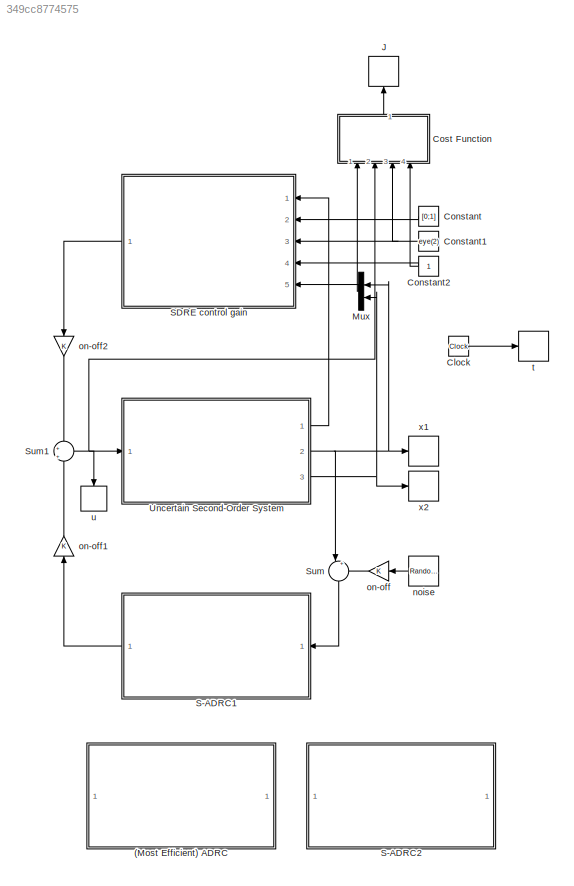
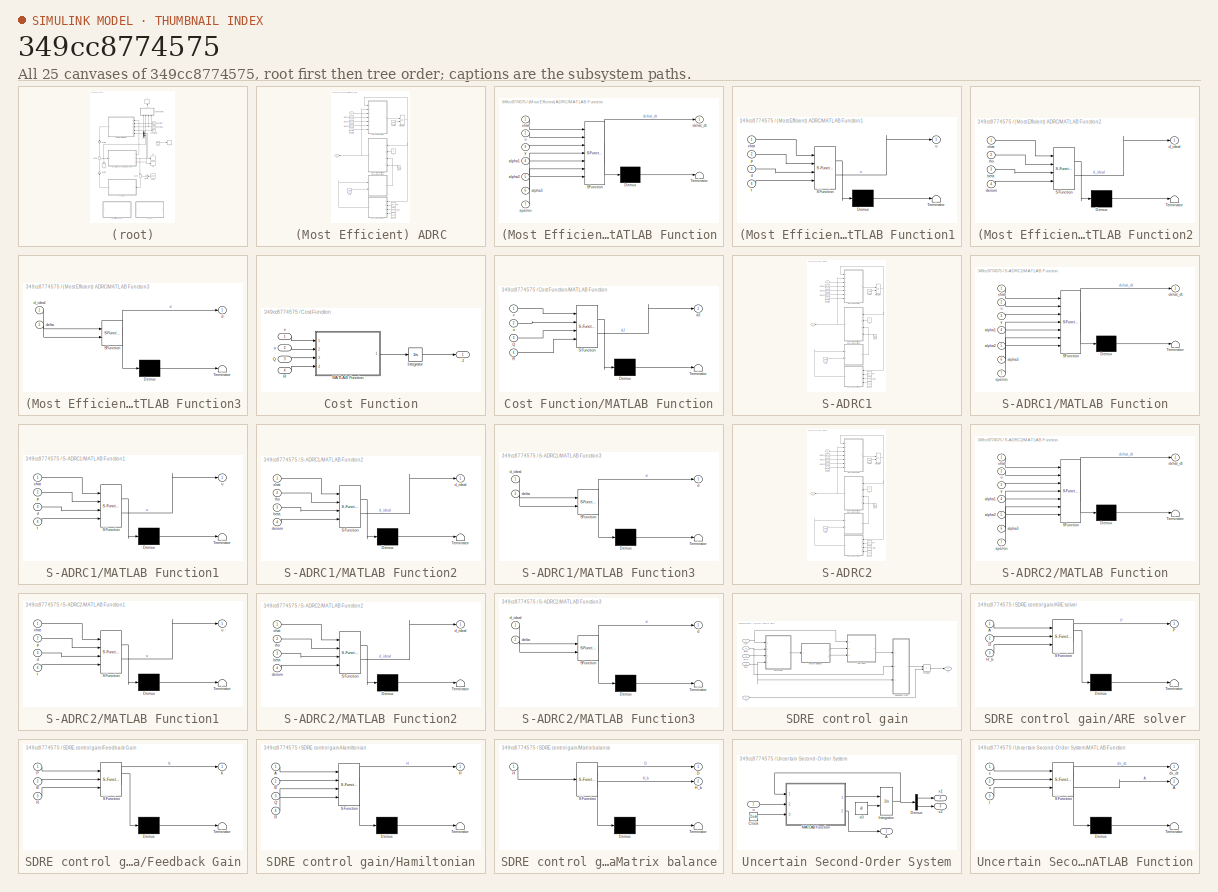
[diagram: thumbnail index - all 25 canvases of the model, root first then tree order]
MODEL slx_349cc8774575
KIND model
CONFIG AbsTol = auto
CONFIG EnableMultiTasking = off
CONFIG FixedStep = auto
CONFIG MaxStep = auto
CONFIG MinStep = auto
CONFIG RelTol = auto
CONFIG SampleTimeConstraint = Unconstrained
CONFIG SolverName = VariableStepAuto
CONFIG StartTime = 0.0
CONFIG StopTime = 10
BLOCK [SubSystem] (Most Efficient) ADRC
  Commented = on
  Ports = [1, 1]
  RequestExecContextInheritance = off
BLOCK [Clock] (Most Efficient) ADRC/Clock
BLOCK [Integrator] (Most Efficient) ADRC/Integrator
  InitialConditionSource = external
  Ports = [2, 1]
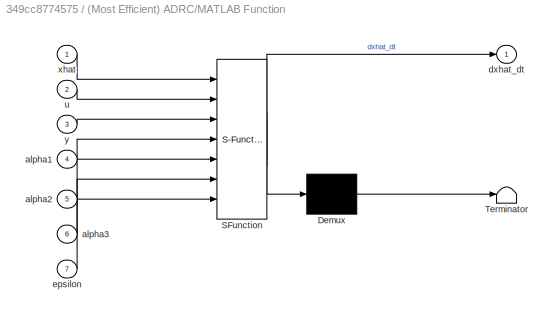
BLOCK [SubSystem] (Most Efficient) ADRC/MATLAB Function
  ErrorFcn = Stateflow.Translate.translate
  PermitHierarchicalResolution = ExplicitOnly
  Ports = [7, 1]
  RequestExecContextInheritance = off
  SFBlockType = MATLAB Function
  TreatAsAtomicUnit = on
BLOCK [Demux] (Most Efficient) ADRC/MATLAB Function/ Demux 
  Outputs = 1
  Ports = [1, 1]
BLOCK [S-Function] (Most Efficient) ADRC/MATLAB Function/ SFunction 
  EnableBusSupport = on
  FunctionName = sf_sfun
  PortCounts = [7 2]
  Ports = [7, 2]
  SFcnIsStateOwnerBlock = off
  SFunctionDeploymentMode = off
  Tag = Stateflow S-Function 1
BLOCK [Terminator] (Most Efficient) ADRC/MATLAB Function/ Terminator 
BLOCK [Inport] (Most Efficient) ADRC/MATLAB Function/alpha1
  Port = 4
BLOCK [Inport] (Most Efficient) ADRC/MATLAB Function/alpha2
  Port = 5
BLOCK [Inport] (Most Efficient) ADRC/MATLAB Function/alpha3
  Port = 6
BLOCK [Outport] (Most Efficient) ADRC/MATLAB Function/dxhat_dt
BLOCK [Inport] (Most Efficient) ADRC/MATLAB Function/epsilon
  Port = 7
BLOCK [Inport] (Most Efficient) ADRC/MATLAB Function/u
  Port = 2
BLOCK [Inport] (Most Efficient) ADRC/MATLAB Function/xhat
BLOCK [Inport] (Most Efficient) ADRC/MATLAB Function/y
  Port = 3
BLOCK [SubSystem] (Most Efficient) ADRC/MATLAB Function1
  ErrorFcn = Stateflow.Translate.translate
  PermitHierarchicalResolution = ExplicitOnly
  Ports = [4, 1]
  RequestExecContextInheritance = off
  SFBlockType = MATLAB Function
  TreatAsAtomicUnit = on
BLOCK [Demux] (Most Efficient) ADRC/MATLAB Function1/ Demux 
  Outputs = 1
  Ports = [1, 1]
BLOCK [S-Function] (Most Efficient) ADRC/MATLAB Function1/ SFunction 
  EnableBusSupport = on
  FunctionName = sf_sfun
  PortCounts = [4 2]
  Ports = [4, 2]
  SFcnIsStateOwnerBlock = off
  SFunctionDeploymentMode = off
  Tag = Stateflow S-Function 3
BLOCK [Terminator] (Most Efficient) ADRC/MATLAB Function1/ Terminator 
BLOCK [Inport] (Most Efficient) ADRC/MATLAB Function1/d
  Port = 3
BLOCK [Inport] (Most Efficient) ADRC/MATLAB Function1/p
  Port = 2
BLOCK [Inport] (Most Efficient) ADRC/MATLAB Function1/t
  Port = 4
BLOCK [Outport] (Most Efficient) ADRC/MATLAB Function1/u
BLOCK [Inport] (Most Efficient) ADRC/MATLAB Function1/xhat
BLOCK [SubSystem] (Most Efficient) ADRC/MATLAB Function2
  ErrorFcn = Stateflow.Translate.translate
  PermitHierarchicalResolution = ExplicitOnly
  Ports = [4, 1]
  RequestExecContextInheritance = off
  SFBlockType = MATLAB Function
  TreatAsAtomicUnit = on
BLOCK [Demux] (Most Efficient) ADRC/MATLAB Function2/ Demux 
  Outputs = 1
  Ports = [1, 1]
BLOCK [S-Function] (Most Efficient) ADRC/MATLAB Function2/ SFunction 
  EnableBusSupport = on
  FunctionName = sf_sfun
  PortCounts = [4 2]
  Ports = [4, 2]
  SFcnIsStateOwnerBlock = off
  SFunctionDeploymentMode = off
  Tag = Stateflow S-Function 4
BLOCK [Terminator] (Most Efficient) ADRC/MATLAB Function2/ Terminator 
BLOCK [Inport] (Most Efficient) ADRC/MATLAB Function2/beta
  Port = 3
BLOCK [Outport] (Most Efficient) ADRC/MATLAB Function2/d_ideal
BLOCK [Inport] (Most Efficient) ADRC/MATLAB Function2/denom
  Port = 4
BLOCK [Inport] (Most Efficient) ADRC/MATLAB Function2/rho
  Port = 2
BLOCK [Inport] (Most Efficient) ADRC/MATLAB Function2/xhat
BLOCK [SubSystem] (Most Efficient) ADRC/MATLAB Function3
  ErrorFcn = Stateflow.Translate.translate
  PermitHierarchicalResolution = ExplicitOnly
  Ports = [2, 1]
  RequestExecContextInheritance = off
  SFBlockType = MATLAB Function
  TreatAsAtomicUnit = on
BLOCK [Demux] (Most Efficient) ADRC/MATLAB Function3/ Demux 
  Outputs = 1
  Ports = [1, 1]
BLOCK [S-Function] (Most Efficient) ADRC/MATLAB Function3/ SFunction 
  EnableBusSupport = on
  FunctionName = sf_sfun
  PortCounts = [2 2]
  Ports = [2, 2]
  SFcnIsStateOwnerBlock = off
  SFunctionDeploymentMode = off
  Tag = Stateflow S-Function 5
BLOCK [Terminator] (Most Efficient) ADRC/MATLAB Function3/ Terminator 
BLOCK [Outport] (Most Efficient) ADRC/MATLAB Function3/d
BLOCK [Inport] (Most Efficient) ADRC/MATLAB Function3/d_ideal
BLOCK [Inport] (Most Efficient) ADRC/MATLAB Function3/delta
  Port = 2
BLOCK [Constant] (Most Efficient) ADRC/alpha1
  Value = alpha1
BLOCK [Constant] (Most Efficient) ADRC/alpha2
  Value = alpha2
BLOCK [Constant] (Most Efficient) ADRC/alpha3
  Value = alpha3
BLOCK [Constant] (Most Efficient) ADRC/beta
  Value = beta
BLOCK [Constant] (Most Efficient) ADRC/delta
  Value = delta
BLOCK [Constant] (Most Efficient) ADRC/denom
  Value = 1e-6
BLOCK [Constant] (Most Efficient) ADRC/epsilon
  Value = epsilon
BLOCK [Constant] (Most Efficient) ADRC/p
  Value = p
BLOCK [Constant] (Most Efficient) ADRC/rho
  Value = rho
BLOCK [Outport] (Most Efficient) ADRC/u
BLOCK [Constant] (Most Efficient) ADRC/xhat0
  Value = xhat0
BLOCK [Inport] (Most Efficient) ADRC/y
BLOCK [Clock] Clock
BLOCK [Constant] Constant
  Value = [0;1]
BLOCK [Constant] Constant1
  Value = eye(2)
BLOCK [Constant] Constant2
BLOCK [SubSystem] Cost Function
  NameLocation = right
  Ports = [4, 1]
  RequestExecContextInheritance = off
BLOCK [Integrator] Cost Function/Integrator
  Ports = [1, 1]
BLOCK [Outport] Cost Function/J
BLOCK [SubSystem] Cost Function/MATLAB Function
  ErrorFcn = Stateflow.Translate.translate
  PermitHierarchicalResolution = ExplicitOnly
  Ports = [4, 1]
  RequestExecContextInheritance = off
  SFBlockType = MATLAB Function
  TreatAsAtomicUnit = on
BLOCK [Demux] Cost Function/MATLAB Function/ Demux 
  Outputs = 1
  Ports = [1, 1]
BLOCK [S-Function] Cost Function/MATLAB Function/ SFunction 
  EnableBusSupport = on
  FunctionName = sf_sfun
  PortCounts = [4 2]
  Ports = [4, 2]
  SFcnIsStateOwnerBlock = off
  SFunctionDeploymentMode = off
  Tag = Stateflow S-Function 10
BLOCK [Terminator] Cost Function/MATLAB Function/ Terminator 
BLOCK [Inport] Cost Function/MATLAB Function/Q
  Port = 3
BLOCK [Inport] Cost Function/MATLAB Function/R
  Port = 4
BLOCK [Outport] Cost Function/MATLAB Function/dJ
BLOCK [Inport] Cost Function/MATLAB Function/u
  Port = 2
BLOCK [Inport] Cost Function/MATLAB Function/x
BLOCK [Inport] Cost Function/Q
  Port = 3
BLOCK [Inport] Cost Function/R
  Port = 4
BLOCK [Inport] Cost Function/u
  Port = 2
BLOCK [Inport] Cost Function/x
BLOCK [ToWorkspace] J
  FixptAsFi = on
  MaxDataPoints = inf
  NameLocation = right
  Ports = [1]
  SampleTime = -1
  Save2DSignal = 2-D array (concatenate along first dimension)
  VariableName = J
BLOCK [Mux] Mux
  DisplayOption = bar
  Inputs = 2
  Ports = [2, 1]
BLOCK [SubSystem] S-ADRC1
  Commented = on
  Ports = [1, 1]
  RequestExecContextInheritance = off
BLOCK [Clock] S-ADRC1/Clock
BLOCK [Integrator] S-ADRC1/Integrator
  InitialConditionSource = external
  Ports = [2, 1]
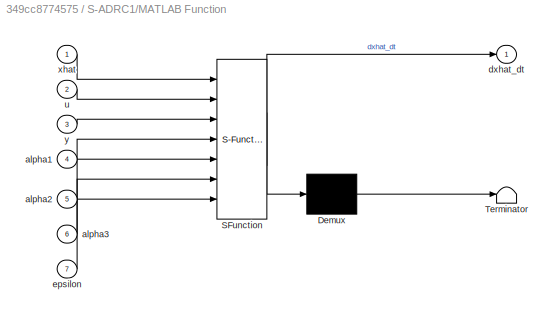
BLOCK [SubSystem] S-ADRC1/MATLAB Function
  ErrorFcn = Stateflow.Translate.translate
  PermitHierarchicalResolution = ExplicitOnly
  Ports = [7, 1]
  RequestExecContextInheritance = off
  SFBlockType = MATLAB Function
  TreatAsAtomicUnit = on
BLOCK [Demux] S-ADRC1/MATLAB Function/ Demux 
  Outputs = 1
  Ports = [1, 1]
BLOCK [S-Function] S-ADRC1/MATLAB Function/ SFunction 
  EnableBusSupport = on
  FunctionName = sf_sfun
  PortCounts = [7 2]
  Ports = [7, 2]
  SFcnIsStateOwnerBlock = off
  SFunctionDeploymentMode = off
  Tag = Stateflow S-Function 11
BLOCK [Terminator] S-ADRC1/MATLAB Function/ Terminator 
BLOCK [Inport] S-ADRC1/MATLAB Function/alpha1
  Port = 4
BLOCK [Inport] S-ADRC1/MATLAB Function/alpha2
  Port = 5
BLOCK [Inport] S-ADRC1/MATLAB Function/alpha3
  Port = 6
BLOCK [Outport] S-ADRC1/MATLAB Function/dxhat_dt
BLOCK [Inport] S-ADRC1/MATLAB Function/epsilon
  Port = 7
BLOCK [Inport] S-ADRC1/MATLAB Function/u
  Port = 2
BLOCK [Inport] S-ADRC1/MATLAB Function/xhat
BLOCK [Inport] S-ADRC1/MATLAB Function/y
  Port = 3
BLOCK [SubSystem] S-ADRC1/MATLAB Function1
  ErrorFcn = Stateflow.Translate.translate
  PermitHierarchicalResolution = ExplicitOnly
  Ports = [4, 1]
  RequestExecContextInheritance = off
  SFBlockType = MATLAB Function
  TreatAsAtomicUnit = on
BLOCK [Demux] S-ADRC1/MATLAB Function1/ Demux 
  Outputs = 1
  Ports = [1, 1]
BLOCK [S-Function] S-ADRC1/MATLAB Function1/ SFunction 
  EnableBusSupport = on
  FunctionName = sf_sfun
  PortCounts = [4 2]
  Ports = [4, 2]
  SFcnIsStateOwnerBlock = off
  SFunctionDeploymentMode = off
  Tag = Stateflow S-Function 12
BLOCK [Terminator] S-ADRC1/MATLAB Function1/ Terminator 
BLOCK [Inport] S-ADRC1/MATLAB Function1/d
  Port = 3
BLOCK [Inport] S-ADRC1/MATLAB Function1/p
  Port = 2
BLOCK [Inport] S-ADRC1/MATLAB Function1/t
  Port = 4
BLOCK [Outport] S-ADRC1/MATLAB Function1/u
BLOCK [Inport] S-ADRC1/MATLAB Function1/xhat
BLOCK [SubSystem] S-ADRC1/MATLAB Function2
  ErrorFcn = Stateflow.Translate.translate
  PermitHierarchicalResolution = ExplicitOnly
  Ports = [4, 1]
  RequestExecContextInheritance = off
  SFBlockType = MATLAB Function
  TreatAsAtomicUnit = on
BLOCK [Demux] S-ADRC1/MATLAB Function2/ Demux 
  Outputs = 1
  Ports = [1, 1]
BLOCK [S-Function] S-ADRC1/MATLAB Function2/ SFunction 
  EnableBusSupport = on
  FunctionName = sf_sfun
  PortCounts = [4 2]
  Ports = [4, 2]
  SFcnIsStateOwnerBlock = off
  SFunctionDeploymentMode = off
  Tag = Stateflow S-Function 13
BLOCK [Terminator] S-ADRC1/MATLAB Function2/ Terminator 
BLOCK [Inport] S-ADRC1/MATLAB Function2/beta
  Port = 3
BLOCK [Outport] S-ADRC1/MATLAB Function2/d_ideal
BLOCK [Inport] S-ADRC1/MATLAB Function2/denom
  Port = 4
BLOCK [Inport] S-ADRC1/MATLAB Function2/rho
  Port = 2
BLOCK [Inport] S-ADRC1/MATLAB Function2/xhat
BLOCK [SubSystem] S-ADRC1/MATLAB Function3
  ErrorFcn = Stateflow.Translate.translate
  PermitHierarchicalResolution = ExplicitOnly
  Ports = [2, 1]
  RequestExecContextInheritance = off
  SFBlockType = MATLAB Function
  TreatAsAtomicUnit = on
BLOCK [Demux] S-ADRC1/MATLAB Function3/ Demux 
  Outputs = 1
  Ports = [1, 1]
BLOCK [S-Function] S-ADRC1/MATLAB Function3/ SFunction 
  EnableBusSupport = on
  FunctionName = sf_sfun
  PortCounts = [2 2]
  Ports = [2, 2]
  SFcnIsStateOwnerBlock = off
  SFunctionDeploymentMode = off
  Tag = Stateflow S-Function 14
BLOCK [Terminator] S-ADRC1/MATLAB Function3/ Terminator 
BLOCK [Outport] S-ADRC1/MATLAB Function3/d
BLOCK [Inport] S-ADRC1/MATLAB Function3/d_ideal
BLOCK [Inport] S-ADRC1/MATLAB Function3/delta
  Port = 2
BLOCK [Constant] S-ADRC1/alpha1
  Value = alpha1
BLOCK [Constant] S-ADRC1/alpha2
  Value = alpha2
BLOCK [Constant] S-ADRC1/alpha3
  Value = alpha3
BLOCK [Constant] S-ADRC1/beta
  Value = beta
BLOCK [Constant] S-ADRC1/delta
  Value = delta
BLOCK [Constant] S-ADRC1/denom
  Value = 1e-6
BLOCK [Constant] S-ADRC1/epsilon
  Value = epsilon
BLOCK [Constant] S-ADRC1/p
  Value = p
BLOCK [Constant] S-ADRC1/rho
  Value = rho
BLOCK [Outport] S-ADRC1/u
BLOCK [Constant] S-ADRC1/xhat0
  Value = xhat0
BLOCK [Inport] S-ADRC1/y
BLOCK [SubSystem] S-ADRC2
  Commented = on
  Ports = [1, 1]
  RequestExecContextInheritance = off
BLOCK [Clock] S-ADRC2/Clock
BLOCK [Integrator] S-ADRC2/Integrator
  InitialConditionSource = external
  Ports = [2, 1]
BLOCK [SubSystem] S-ADRC2/MATLAB Function
  ErrorFcn = Stateflow.Translate.translate
  PermitHierarchicalResolution = ExplicitOnly
  Ports = [7, 1]
  RequestExecContextInheritance = off
  SFBlockType = MATLAB Function
  TreatAsAtomicUnit = on
BLOCK [Demux] S-ADRC2/MATLAB Function/ Demux 
  Outputs = 1
  Ports = [1, 1]
BLOCK [S-Function] S-ADRC2/MATLAB Function/ SFunction 
  EnableBusSupport = on
  FunctionName = sf_sfun
  PortCounts = [7 2]
  Ports = [7, 2]
  SFcnIsStateOwnerBlock = off
  SFunctionDeploymentMode = off
  Tag = Stateflow S-Function 15
BLOCK [Terminator] S-ADRC2/MATLAB Function/ Terminator 
BLOCK [Inport] S-ADRC2/MATLAB Function/alpha1
  Port = 4
BLOCK [Inport] S-ADRC2/MATLAB Function/alpha2
  Port = 5
BLOCK [Inport] S-ADRC2/MATLAB Function/alpha3
  Port = 6
BLOCK [Outport] S-ADRC2/MATLAB Function/dxhat_dt
BLOCK [Inport] S-ADRC2/MATLAB Function/epsilon
  Port = 7
BLOCK [Inport] S-ADRC2/MATLAB Function/u
  Port = 2
BLOCK [Inport] S-ADRC2/MATLAB Function/xhat
BLOCK [Inport] S-ADRC2/MATLAB Function/y
  Port = 3
BLOCK [SubSystem] S-ADRC2/MATLAB Function1
  ErrorFcn = Stateflow.Translate.translate
  PermitHierarchicalResolution = ExplicitOnly
  Ports = [4, 1]
  RequestExecContextInheritance = off
  SFBlockType = MATLAB Function
  TreatAsAtomicUnit = on
BLOCK [Demux] S-ADRC2/MATLAB Function1/ Demux 
  Outputs = 1
  Ports = [1, 1]
BLOCK [S-Function] S-ADRC2/MATLAB Function1/ SFunction 
  EnableBusSupport = on
  FunctionName = sf_sfun
  PortCounts = [4 2]
  Ports = [4, 2]
  SFcnIsStateOwnerBlock = off
  SFunctionDeploymentMode = off
  Tag = Stateflow S-Function 16
BLOCK [Terminator] S-ADRC2/MATLAB Function1/ Terminator 
BLOCK [Inport] S-ADRC2/MATLAB Function1/d
  Port = 3
BLOCK [Inport] S-ADRC2/MATLAB Function1/p
  Port = 2
BLOCK [Inport] S-ADRC2/MATLAB Function1/t
  Port = 4
BLOCK [Outport] S-ADRC2/MATLAB Function1/u
BLOCK [Inport] S-ADRC2/MATLAB Function1/xhat
BLOCK [SubSystem] S-ADRC2/MATLAB Function2
  ErrorFcn = Stateflow.Translate.translate
  PermitHierarchicalResolution = ExplicitOnly
  Ports = [4, 1]
  RequestExecContextInheritance = off
  SFBlockType = MATLAB Function
  TreatAsAtomicUnit = on
BLOCK [Demux] S-ADRC2/MATLAB Function2/ Demux 
  Outputs = 1
  Ports = [1, 1]
BLOCK [S-Function] S-ADRC2/MATLAB Function2/ SFunction 
  EnableBusSupport = on
  FunctionName = sf_sfun
  PortCounts = [4 2]
  Ports = [4, 2]
  SFcnIsStateOwnerBlock = off
  SFunctionDeploymentMode = off
  Tag = Stateflow S-Function 17
BLOCK [Terminator] S-ADRC2/MATLAB Function2/ Terminator 
BLOCK [Inport] S-ADRC2/MATLAB Function2/beta
  Port = 3
BLOCK [Outport] S-ADRC2/MATLAB Function2/d_ideal
BLOCK [Inport] S-ADRC2/MATLAB Function2/denom
  Port = 4
BLOCK [Inport] S-ADRC2/MATLAB Function2/rho
  Port = 2
BLOCK [Inport] S-ADRC2/MATLAB Function2/xhat
BLOCK [SubSystem] S-ADRC2/MATLAB Function3
  ErrorFcn = Stateflow.Translate.translate
  PermitHierarchicalResolution = ExplicitOnly
  Ports = [2, 1]
  RequestExecContextInheritance = off
  SFBlockType = MATLAB Function
  TreatAsAtomicUnit = on
BLOCK [Demux] S-ADRC2/MATLAB Function3/ Demux 
  Outputs = 1
  Ports = [1, 1]
BLOCK [S-Function] S-ADRC2/MATLAB Function3/ SFunction 
  EnableBusSupport = on
  FunctionName = sf_sfun
  PortCounts = [2 2]
  Ports = [2, 2]
  SFcnIsStateOwnerBlock = off
  SFunctionDeploymentMode = off
  Tag = Stateflow S-Function 18
BLOCK [Terminator] S-ADRC2/MATLAB Function3/ Terminator 
BLOCK [Outport] S-ADRC2/MATLAB Function3/d
BLOCK [Inport] S-ADRC2/MATLAB Function3/d_ideal
BLOCK [Inport] S-ADRC2/MATLAB Function3/delta
  Port = 2
BLOCK [Constant] S-ADRC2/alpha1
  Value = alpha1
BLOCK [Constant] S-ADRC2/alpha2
  Value = alpha2
BLOCK [Constant] S-ADRC2/alpha3
  Value = alpha3
BLOCK [Constant] S-ADRC2/beta
  Value = beta
BLOCK [Constant] S-ADRC2/delta
  Value = delta
BLOCK [Constant] S-ADRC2/denom
  Value = 1e-6
BLOCK [Constant] S-ADRC2/epsilon
  Value = epsilon
BLOCK [Constant] S-ADRC2/p
  Value = p
BLOCK [Constant] S-ADRC2/rho
  Value = rho
BLOCK [Outport] S-ADRC2/u
BLOCK [Constant] S-ADRC2/xhat0
  Value = xhat0
BLOCK [Inport] S-ADRC2/y
BLOCK [SubSystem] SDRE control gain
  Ports = [5, 1]
  RequestExecContextInheritance = off
BLOCK [Inport] SDRE control gain/A(x)
BLOCK [SubSystem] SDRE control gain/ARE solver
  ErrorFcn = Stateflow.Translate.translate
  PermitHierarchicalResolution = ExplicitOnly
  Ports = [3, 1]
  RequestExecContextInheritance = off
  SFBlockType = MATLAB Function
  TreatAsAtomicUnit = on
BLOCK [Demux] SDRE control gain/ARE solver/ Demux 
  Outputs = 1
  Ports = [1, 1]
BLOCK [S-Function] SDRE control gain/ARE solver/ SFunction 
  EnableBusSupport = on
  FunctionName = sf_sfun
  PortCounts = [3 2]
  Ports = [3, 2]
  SFcnIsStateOwnerBlock = off
  SFunctionDeploymentMode = off
  Tag = Stateflow S-Function 6
BLOCK [Terminator] SDRE control gain/ARE solver/ Terminator 
BLOCK [Inport] SDRE control gain/ARE solver/A
BLOCK [Inport] SDRE control gain/ARE solver/D
  Port = 2
BLOCK [Inport] SDRE control gain/ARE solver/H_b
  Port = 3
BLOCK [Outport] SDRE control gain/ARE solver/P
BLOCK [Inport] SDRE control gain/B(x)
  Port = 2
BLOCK [SubSystem] SDRE control gain/Feedback Gain
  ErrorFcn = Stateflow.Translate.translate
  PermitHierarchicalResolution = ExplicitOnly
  Ports = [3, 1]
  RequestExecContextInheritance = off
  SFBlockType = MATLAB Function
  TreatAsAtomicUnit = on
BLOCK [Demux] SDRE control gain/Feedback Gain/ Demux 
  Outputs = 1
  Ports = [1, 1]
BLOCK [S-Function] SDRE control gain/Feedback Gain/ SFunction 
  EnableBusSupport = on
  FunctionName = sf_sfun
  PortCounts = [3 2]
  Ports = [3, 2]
  SFcnIsStateOwnerBlock = off
  SFunctionDeploymentMode = off
  Tag = Stateflow S-Function 7
BLOCK [Terminator] SDRE control gain/Feedback Gain/ Terminator 
BLOCK [Inport] SDRE control gain/Feedback Gain/B
  Port = 2
BLOCK [Outport] SDRE control gain/Feedback Gain/K
BLOCK [Inport] SDRE control gain/Feedback Gain/P
BLOCK [Inport] SDRE control gain/Feedback Gain/R
  Port = 3
BLOCK [SubSystem] SDRE control gain/Hamiltonian
  ErrorFcn = Stateflow.Translate.translate
  PermitHierarchicalResolution = ExplicitOnly
  Ports = [4, 1]
  RequestExecContextInheritance = off
  SFBlockType = MATLAB Function
  TreatAsAtomicUnit = on
BLOCK [Demux] SDRE control gain/Hamiltonian/ Demux 
  Outputs = 1
  Ports = [1, 1]
BLOCK [S-Function] SDRE control gain/Hamiltonian/ SFunction 
  EnableBusSupport = on
  FunctionName = sf_sfun
  PortCounts = [4 2]
  Ports = [4, 2]
  SFcnIsStateOwnerBlock = off
  SFunctionDeploymentMode = off
  Tag = Stateflow S-Function 8
BLOCK [Terminator] SDRE control gain/Hamiltonian/ Terminator 
BLOCK [Inport] SDRE control gain/Hamiltonian/A
BLOCK [Inport] SDRE control gain/Hamiltonian/B
  Port = 2
BLOCK [Outport] SDRE control gain/Hamiltonian/H
BLOCK [Inport] SDRE control gain/Hamiltonian/Q
  Port = 3
BLOCK [Inport] SDRE control gain/Hamiltonian/R
  Port = 4
BLOCK [SubSystem] SDRE control gain/Matrix balance
  ErrorFcn = Stateflow.Translate.translate
  PermitHierarchicalResolution = ExplicitOnly
  Ports = [1, 2]
  RequestExecContextInheritance = off
  SFBlockType = MATLAB Function
  TreatAsAtomicUnit = on
BLOCK [Demux] SDRE control gain/Matrix balance/ Demux 
  Outputs = 1
  Ports = [1, 1]
BLOCK [S-Function] SDRE control gain/Matrix balance/ SFunction 
  EnableBusSupport = on
  FunctionName = sf_sfun
  PortCounts = [1 3]
  Ports = [1, 3]
  SFcnIsStateOwnerBlock = off
  SFunctionDeploymentMode = off
  Tag = Stateflow S-Function 9
BLOCK [Terminator] SDRE control gain/Matrix balance/ Terminator 
BLOCK [Outport] SDRE control gain/Matrix balance/D
BLOCK [Inport] SDRE control gain/Matrix balance/H
BLOCK [Outport] SDRE control gain/Matrix balance/H_b
  Port = 2
BLOCK [Product] SDRE control gain/Product
  Multiplication = Matrix(*)
  Ports = [2, 1]
BLOCK [Inport] SDRE control gain/Q(x)
  Port = 3
BLOCK [Inport] SDRE control gain/R(x)
  Port = 4
BLOCK [Outport] SDRE control gain/u
BLOCK [Inport] SDRE control gain/x
  Port = 5
BLOCK [Sum] Sum
  Commented = on
  Inputs = |++
  NameLocation = right
  Ports = [2, 1]
BLOCK [Sum] Sum1
  Inputs = +|+
  NameLocation = top
  Ports = [2, 1]
BLOCK [SubSystem] Uncertain Second-Order System
  Ports = [1, 3]
  RequestExecContextInheritance = off
BLOCK [Outport] Uncertain Second-Order System/A
BLOCK [Clock] Uncertain Second-Order System/Clock
BLOCK [Demux] Uncertain Second-Order System/Demux
  Outputs = 2
  Ports = [1, 2]
BLOCK [Integrator] Uncertain Second-Order System/Integrator
  InitialConditionSource = external
  Ports = [2, 1]
BLOCK [SubSystem] Uncertain Second-Order System/MATLAB Function
  ErrorFcn = Stateflow.Translate.translate
  PermitHierarchicalResolution = ExplicitOnly
  Ports = [3, 2]
  RequestExecContextInheritance = off
  SFBlockType = MATLAB Function
  TreatAsAtomicUnit = on
BLOCK [Demux] Uncertain Second-Order System/MATLAB Function/ Demux 
  Outputs = 1
  Ports = [1, 1]
BLOCK [S-Function] Uncertain Second-Order System/MATLAB Function/ SFunction 
  EnableBusSupport = on
  FunctionName = sf_sfun
  PortCounts = [3 3]
  Ports = [3, 3]
  SFcnIsStateOwnerBlock = off
  SFunctionDeploymentMode = off
  Tag = Stateflow S-Function 2
BLOCK [Terminator] Uncertain Second-Order System/MATLAB Function/ Terminator 
BLOCK [Outport] Uncertain Second-Order System/MATLAB Function/A
  Port = 2
BLOCK [Outport] Uncertain Second-Order System/MATLAB Function/dx_dt
BLOCK [Inport] Uncertain Second-Order System/MATLAB Function/t
  Port = 3
BLOCK [Inport] Uncertain Second-Order System/MATLAB Function/u
  Port = 2
BLOCK [Inport] Uncertain Second-Order System/MATLAB Function/x
BLOCK [Inport] Uncertain Second-Order System/u
BLOCK [Constant] Uncertain Second-Order System/x0
  Value = x0
BLOCK [Outport] Uncertain Second-Order System/x1
  Port = 2
BLOCK [Outport] Uncertain Second-Order System/x2
  Port = 3
BLOCK [RandomNumber] noise
  Commented = on
  SampleTime = 1e-4
  Variance = (0.01)^2
BLOCK [Gain] on-off
  Commented = on
BLOCK [Gain] on-off1
  Commented = on
  NameLocation = left
BLOCK [Gain] on-off2
  NameLocation = left
BLOCK [ToWorkspace] t
  FixptAsFi = on
  MaxDataPoints = inf
  Ports = [1]
  SampleTime = -1
  Save2DSignal = 2-D array (concatenate along first dimension)
  VariableName = t
BLOCK [ToWorkspace] u
  FixptAsFi = on
  MaxDataPoints = inf
  NameLocation = right
  Ports = [1]
  SampleTime = -1
  Save2DSignal = 2-D array (concatenate along first dimension)
  VariableName = u
BLOCK [ToWorkspace] x1
  FixptAsFi = on
  MaxDataPoints = inf
  Ports = [1]
  SampleTime = -1
  Save2DSignal = 2-D array (concatenate along first dimension)
  VariableName = x1
BLOCK [ToWorkspace] x2
  FixptAsFi = on
  MaxDataPoints = inf
  Ports = [1]
  SampleTime = -1
  Save2DSignal = 2-D array (concatenate along first dimension)
  VariableName = x2
LINE (Most Efficient) ADRC/Clock:1 -> (Most Efficient) ADRC/MATLAB Function1:4
NET (Most Efficient) ADRC/Integrator:1 -> (Most Efficient) ADRC/MATLAB Function1:1, (Most Efficient) ADRC/MATLAB Function2:1, (Most Efficient) ADRC/MATLAB Function:1
NET (Most Efficient) ADRC/MATLAB Function1:1 -> (Most Efficient) ADRC/MATLAB Function:2, (Most Efficient) ADRC/u:1
LINE (Most Efficient) ADRC/MATLAB Function2:1 -> (Most Efficient) ADRC/MATLAB Function3:1
LINE (Most Efficient) ADRC/MATLAB Function3:1 -> (Most Efficient) ADRC/MATLAB Function1:3
LINE (Most Efficient) ADRC/MATLAB Function:1 -> (Most Efficient) ADRC/Integrator:1
LINE (Most Efficient) ADRC/alpha1:1 -> (Most Efficient) ADRC/MATLAB Function:4
LINE (Most Efficient) ADRC/alpha2:1 -> (Most Efficient) ADRC/MATLAB Function:5
LINE (Most Efficient) ADRC/alpha3:1 -> (Most Efficient) ADRC/MATLAB Function:6
LINE (Most Efficient) ADRC/beta:1 -> (Most Efficient) ADRC/MATLAB Function2:3
LINE (Most Efficient) ADRC/delta:1 -> (Most Efficient) ADRC/MATLAB Function3:2
LINE (Most Efficient) ADRC/denom:1 -> (Most Efficient) ADRC/MATLAB Function2:4
LINE (Most Efficient) ADRC/epsilon:1 -> (Most Efficient) ADRC/MATLAB Function:7
LINE (Most Efficient) ADRC/p:1 -> (Most Efficient) ADRC/MATLAB Function1:2
LINE (Most Efficient) ADRC/rho:1 -> (Most Efficient) ADRC/MATLAB Function2:2
LINE (Most Efficient) ADRC/xhat0:1 -> (Most Efficient) ADRC/Integrator:2
LINE (Most Efficient) ADRC/y:1 -> (Most Efficient) ADRC/MATLAB Function:3
LINE Clock:1 -> t:1
NET Constant1:1 -> Cost Function:3, SDRE control gain:3
NET Constant2:1 -> Cost Function:4, SDRE control gain:4
LINE Constant:1 -> SDRE control gain:2
LINE Cost Function/Integrator:1 -> Cost Function/J:1
LINE Cost Function/MATLAB Function:1 -> Cost Function/Integrator:1
LINE Cost Function/Q:1 -> Cost Function/MATLAB Function:3
LINE Cost Function/R:1 -> Cost Function/MATLAB Function:4
LINE Cost Function/u:1 -> Cost Function/MATLAB Function:2
LINE Cost Function/x:1 -> Cost Function/MATLAB Function:1
LINE Cost Function:1 -> J:1
NET Mux:1 -> Cost Function:1, SDRE control gain:5
LINE S-ADRC1/Clock:1 -> S-ADRC1/MATLAB Function1:4
NET S-ADRC1/Integrator:1 -> S-ADRC1/MATLAB Function1:1, S-ADRC1/MATLAB Function2:1, S-ADRC1/MATLAB Function:1
NET S-ADRC1/MATLAB Function1:1 -> S-ADRC1/MATLAB Function:2, S-ADRC1/u:1
LINE S-ADRC1/MATLAB Function2:1 -> S-ADRC1/MATLAB Function3:1
LINE S-ADRC1/MATLAB Function3:1 -> S-ADRC1/MATLAB Function1:3
LINE S-ADRC1/MATLAB Function:1 -> S-ADRC1/Integrator:1
LINE S-ADRC1/alpha1:1 -> S-ADRC1/MATLAB Function:4
LINE S-ADRC1/alpha2:1 -> S-ADRC1/MATLAB Function:5
LINE S-ADRC1/alpha3:1 -> S-ADRC1/MATLAB Function:6
LINE S-ADRC1/beta:1 -> S-ADRC1/MATLAB Function2:3
LINE S-ADRC1/delta:1 -> S-ADRC1/MATLAB Function3:2
LINE S-ADRC1/denom:1 -> S-ADRC1/MATLAB Function2:4
LINE S-ADRC1/epsilon:1 -> S-ADRC1/MATLAB Function:7
LINE S-ADRC1/p:1 -> S-ADRC1/MATLAB Function1:2
LINE S-ADRC1/rho:1 -> S-ADRC1/MATLAB Function2:2
LINE S-ADRC1/xhat0:1 -> S-ADRC1/Integrator:2
LINE S-ADRC1/y:1 -> S-ADRC1/MATLAB Function:3
LINE S-ADRC1:1 -> on-off1:1
LINE S-ADRC2/Clock:1 -> S-ADRC2/MATLAB Function1:4
NET S-ADRC2/Integrator:1 -> S-ADRC2/MATLAB Function1:1, S-ADRC2/MATLAB Function2:1, S-ADRC2/MATLAB Function:1
NET S-ADRC2/MATLAB Function1:1 -> S-ADRC2/MATLAB Function:2, S-ADRC2/u:1
LINE S-ADRC2/MATLAB Function2:1 -> S-ADRC2/MATLAB Function3:1
LINE S-ADRC2/MATLAB Function3:1 -> S-ADRC2/MATLAB Function1:3
LINE S-ADRC2/MATLAB Function:1 -> S-ADRC2/Integrator:1
LINE S-ADRC2/alpha1:1 -> S-ADRC2/MATLAB Function:4
LINE S-ADRC2/alpha2:1 -> S-ADRC2/MATLAB Function:5
LINE S-ADRC2/alpha3:1 -> S-ADRC2/MATLAB Function:6
LINE S-ADRC2/beta:1 -> S-ADRC2/MATLAB Function2:3
LINE S-ADRC2/delta:1 -> S-ADRC2/MATLAB Function3:2
LINE S-ADRC2/denom:1 -> S-ADRC2/MATLAB Function2:4
LINE S-ADRC2/epsilon:1 -> S-ADRC2/MATLAB Function:7
LINE S-ADRC2/p:1 -> S-ADRC2/MATLAB Function1:2
LINE S-ADRC2/rho:1 -> S-ADRC2/MATLAB Function2:2
LINE S-ADRC2/xhat0:1 -> S-ADRC2/Integrator:2
LINE S-ADRC2/y:1 -> S-ADRC2/MATLAB Function:3
NET SDRE control gain/A(x):1 -> SDRE control gain/ARE solver:1, SDRE control gain/Hamiltonian:1
LINE SDRE control gain/ARE solver:1 -> SDRE control gain/Feedback Gain:1
NET SDRE control gain/B(x):1 -> SDRE control gain/Feedback Gain:2, SDRE control gain/Hamiltonian:2
LINE SDRE control gain/Feedback Gain:1 -> SDRE control gain/Product:1
LINE SDRE control gain/Hamiltonian:1 -> SDRE control gain/Matrix balance:1
LINE SDRE control gain/Matrix balance:1 -> SDRE control gain/ARE solver:2
LINE SDRE control gain/Matrix balance:2 -> SDRE control gain/ARE solver:3
LINE SDRE control gain/Product:1 -> SDRE control gain/u:1
LINE SDRE control gain/Q(x):1 -> SDRE control gain/Hamiltonian:3
NET SDRE control gain/R(x):1 -> SDRE control gain/Feedback Gain:3, SDRE control gain/Hamiltonian:4
LINE SDRE control gain/x:1 -> SDRE control gain/Product:2
LINE SDRE control gain:1 -> on-off2:1
NET Sum1:1 -> Cost Function:2, Uncertain Second-Order System:1, u:1
LINE Sum:1 -> S-ADRC1:1
LINE Uncertain Second-Order System/Clock:1 -> Uncertain Second-Order System/MATLAB Function:3
LINE Uncertain Second-Order System/Demux:1 -> Uncertain Second-Order System/x1:1
LINE Uncertain Second-Order System/Demux:2 -> Uncertain Second-Order System/x2:1
NET Uncertain Second-Order System/Integrator:1 -> Uncertain Second-Order System/Demux:1, Uncertain Second-Order System/MATLAB Function:1
LINE Uncertain Second-Order System/MATLAB Function:1 -> Uncertain Second-Order System/Integrator:1
LINE Uncertain Second-Order System/MATLAB Function:2 -> Uncertain Second-Order System/A:1
LINE Uncertain Second-Order System/u:1 -> Uncertain Second-Order System/MATLAB Function:2
LINE Uncertain Second-Order System/x0:1 -> Uncertain Second-Order System/Integrator:2
LINE Uncertain Second-Order System:1 -> SDRE control gain:1
NET Uncertain Second-Order System:2 -> Mux:1, Sum:1, x1:1
NET Uncertain Second-Order System:3 -> Mux:2, x2:1
LINE noise:1 -> on-off:1
LINE on-off1:1 -> Sum1:2
LINE on-off2:1 -> Sum1:1
LINE on-off:1 -> Sum:2
note: NET lines group one-source signal fan-out (src -> all destinations, sorted); 1:1 wires keep LINE
CHART Cost Function/MATLAB Function states=1 transitions=1
  STATE_LABEL 'eML_blk_kernel()'
  STATE_LABEL "SCRIPT:\nfunction dJ  = cost_gen(x,u,Q,R)\n\ndJ=0.5*(x'*Q*x+u'*R*u);"
CHART S-ADRC1/MATLAB Function states=1 transitions=1
  STATE_LABEL 'eML_blk_kernel()'
  STATE_LABEL 'SCRIPT:\nfunction dxhat_dt = LESO(xhat,u,y,alpha1,alpha2,alpha3,epsilon)\n\ng=1;\n\ndxhat_dt=[xhat(2)+(alpha1/epsilon)*(y-xhat(1))\n          xhat(3)+(alpha2/epsilon^2)*(y-xhat(1))+g*u\n          (alpha3/epsilon^3)*(y-xhat(1))];\n'  <repeated x3 — deduplicated; at blocks: MATLAB Function>
CHART S-ADRC1/MATLAB Function1 states=1 transitions=1
  STATE_LABEL 'eML_blk_kernel()'
  STATE_LABEL 'SCRIPT:\nfunction u = Controller(xhat,p,d,t)\n\n% d=4.2;\n\nu=-p*xhat(1)-d*xhat(2)-xhat(3);\n\nif t<0\n    \n    u=0;\n    \nend'
CHART S-ADRC1/MATLAB Function2 states=1 transitions=1
  STATE_LABEL 'eML_blk_kernel()'
  STATE_LABEL 'SCRIPT:\nfunction d_ideal = d_gen(xhat,rho,beta,denom)\n\nd_ideal=sqrt(((xhat(3)-rho*xhat(1))/(xhat(2)+denom))^2+beta);\n'
CHART S-ADRC1/MATLAB Function3 states=1 transitions=1
  STATE_LABEL 'eML_blk_kernel()'
  STATE_LABEL 'SCRIPT:\nfunction d = d_gen(d_ideal,delta)\n\nif d_ideal>delta\n    \n    d=delta;\n    \nelse\n\nd = d_ideal;\n\nend\n'
CHART S-ADRC2/MATLAB Function states=1 transitions=1
  STATE_LABEL 'eML_blk_kernel()'
CHART (Most Efficient) ADRC/MATLAB Function states=1 transitions=1
  STATE_LABEL 'eML_blk_kernel()'
CHART S-ADRC2/MATLAB Function1 states=1 transitions=1
  STATE_LABEL 'eML_blk_kernel()'
  STATE_LABEL 'SCRIPT:\nfunction u = Controller(xhat,p,d,t)\n\n% d=4.2;\n\nu=-p*xhat(1)-d*xhat(2)-xhat(3);\n\nif t<0\n    \n    u=0;\n    \nend'
CHART S-ADRC2/MATLAB Function2 states=1 transitions=1
  STATE_LABEL 'eML_blk_kernel()'
  STATE_LABEL 'SCRIPT:\nfunction d_ideal = d_gen(xhat,rho,beta,denom)\n\nd_ideal=sqrt(((xhat(3)-rho*xhat(1))/(xhat(2)+denom))^2+beta);\n'
CHART S-ADRC2/MATLAB Function3 states=1 transitions=1
  STATE_LABEL 'eML_blk_kernel()'
  STATE_LABEL 'SCRIPT:\nfunction d = d_gen(d_ideal,delta)\n\nif d_ideal>delta\n    \n    d=delta;\n    \nelse\n\nd = d_ideal;\n\nend\n'
CHART Uncertain Second-Order System/MATLAB Function states=1 transitions=1
  STATE_LABEL 'eML_blk_kernel()'
  STATE_LABEL 'SCRIPT:\nfunction [dx_dt,A] = dyn(x,u,t)\n\nf=exp(sin(t))*x(1)+t*cos(t^2)*x(2);%(1+exp(-t))*sin(x(1));%-x(1)+0.1*(1-x(1)^2)*x(2);%\n\nA=[0           1\n   exp(sin(t)) t*cos(t^2)];\n\n\n\n% A=[0 1\n%    (1+exp(-t))*sin(x(1))/x(1) 0];\n\n% A=[0 1\n%    3^0.5 ((1+exp(-t))*sin(x(1))-3^0.5*x(1))/x(2)];\n \n% A=[0 1\n%    (exp(-t))*sin(x(1))/x(1) (1)*sin(x(1))/x(2)];\n \n% A=[0 1\n%    (1)*sin(x(1))/x(1) (exp(-t))*sin(x(1)...<+38ch>'
CHART (Most Efficient) ADRC/MATLAB Function1 states=1 transitions=1
  STATE_LABEL 'eML_blk_kernel()'
  STATE_LABEL 'SCRIPT:\nfunction u = Controller(xhat,p,d,t)\n\n% d=4.2;\n\nu=-p*xhat(1)-d*xhat(2)-xhat(3);\n\nif t<0\n    \n    u=0;\n    \nend'
CHART (Most Efficient) ADRC/MATLAB Function2 states=1 transitions=1
  STATE_LABEL 'eML_blk_kernel()'
  STATE_LABEL 'SCRIPT:\nfunction d_ideal = d_gen(xhat,rho,beta,denom)\n\nd_ideal=sqrt(((xhat(3)-rho*xhat(1))/(xhat(2)+denom))^2+beta);\n'
CHART (Most Efficient) ADRC/MATLAB Function3 states=1 transitions=1
  STATE_LABEL 'eML_blk_kernel()'
  STATE_LABEL 'SCRIPT:\nfunction d = d_gen(d_ideal,delta)\n\nif d_ideal>delta\n    \n    d=delta;\n    \nelse\n\nd = d_ideal;\n\nend\n'
CHART SDRE control gain/ARE solver states=1 transitions=1
  STATE_LABEL 'eML_blk_kernel()'
  STATE_LABEL "SCRIPT:\nfunction P = ARE_diag(A, D, H_b)\n\n    n = size(A,1);\n    \n    P = zeros(n,n);\n    \n    [T,L] = eig(H_b);\n    \n    T = D*T;\n    \n    lambda = diag(L);\n    ord_lambda = zeros(1,2*n);\n    for k = 1 : 2*n;\n        if real(lambda(k)) < 0\n            ord_lambda(k) = -1;\n        elseif real(lambda(k)) > 0\n            ord_lambda(k) = 1;\n        else\n            %disp('!!!');\n        end\n    end\n  ...<+177ch>"
CHART SDRE control gain/Feedback Gain states=1 transitions=1
  STATE_LABEL 'eML_blk_kernel()'
  STATE_LABEL "SCRIPT:\nfunction K  = u_in_gen(P,B,R)\n\nK=-(inv(R))*B'*P;\n\nend"
CHART SDRE control gain/Hamiltonian states=1 transitions=1
  STATE_LABEL 'eML_blk_kernel()'
  STATE_LABEL "SCRIPT:\nfunction H  = Hamilton(A, B, Q, R)\n    \nH = [A -(B/R)*B'; -Q -A'];"
CHART SDRE control gain/Matrix balance states=1 transitions=1
  STATE_LABEL 'eML_blk_kernel()'
  STATE_LABEL 'SCRIPT:\nfunction [D, H_b] = matrix_balance(H)\n    \n% Numerical Recipes p.593 - Balancing (vedi anche articolo James)\n% Trasformazione\n% D^-1 * A * D = B \n    \nA=H;\n\n    n = size(A,1);\n    B = A;\n    D = eye(n);\n    \n    RADIX = 2;\n    sqrdx = RADIX*RADIX;\n    \n    done = 0;\n    \n    while done ~= 1 \n        \n        done = 1;\n        \n        for i = 1 : n \n            \n            r = 0;\n        ...<+1083ch>'
CHART  states=0 transitions=0
CHART  states=0 transitions=0
CHART  states=0 transitions=0
CHART  states=0 transitions=0
CHART  states=0 transitions=0
CHART  states=0 transitions=0
CHART  states=0 transitions=0
CHART  states=0 transitions=0
CHART  states=0 transitions=0
CHART  states=0 transitions=0
CHART  states=0 transitions=0
CHART  states=0 transitions=0
CHART  states=0 transitions=0
CHART  states=0 transitions=0
CHART  states=0 transitions=0
CHART  states=0 transitions=0
CHART  states=0 transitions=0
CHART  states=0 transitions=0
